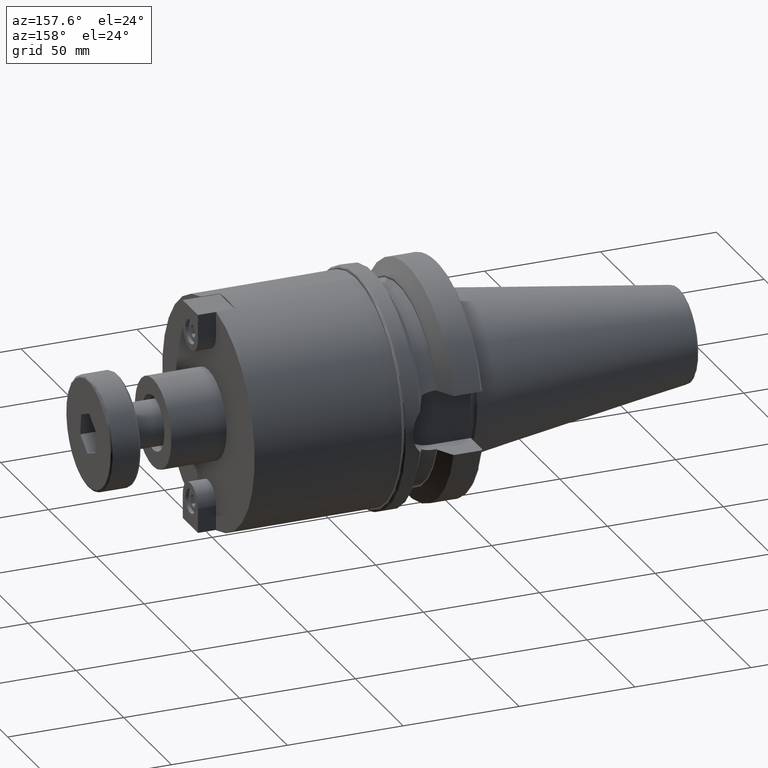
[diagram: clean part render]
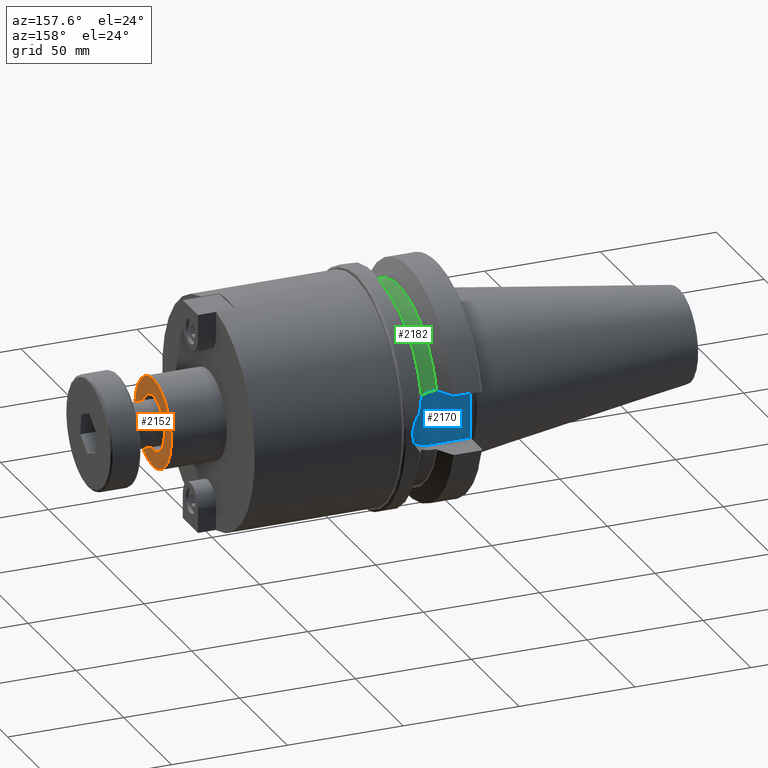
[diagram: same view with three faces highlighted in distinct colors, each labeled with its STEP entity id]
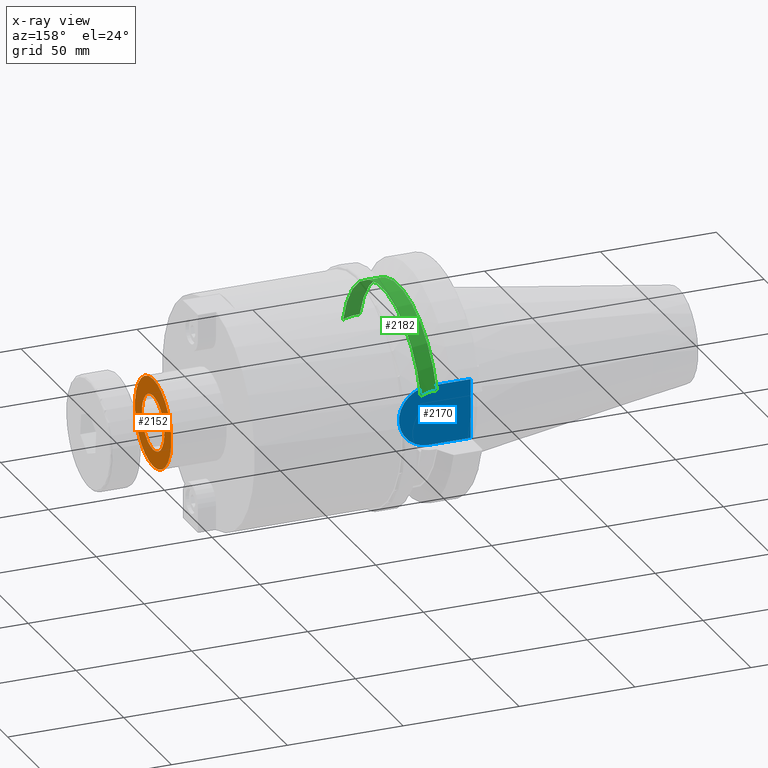
[diagram: x-ray of the same camera — body ghosted, the three highlighted faces saturated]
A machine part, auxiliary view with three faces highlighted in distinct colors.
The next image is the same camera in x-ray (body ghosted, the three faces saturated) — at least one of them is partly hidden behind the body in this view.
Their STEP definitions:

[orange] entity #2152 — the highlighted planar face has unit normal (1, 0, 0).
#527=FACE_BOUND('',#797,.T.);
#560=CIRCLE('',#2426,19.05);
#561=CIRCLE('',#2428,11.75);
#685=FACE_OUTER_BOUND('',#796,.T.);
#796=EDGE_LOOP('',(#1655));
#797=EDGE_LOOP('',(#1656));
#1171=VERTEX_POINT('',#3468);
#1172=VERTEX_POINT('',#3472);
#1354=EDGE_CURVE('',#1171,#1171,#560,.T.);
#1356=EDGE_CURVE('',#1172,#1172,#561,.T.);
#1655=ORIENTED_EDGE('',*,*,#1354,.T.);
#1656=ORIENTED_EDGE('',*,*,#1356,.F.);
#2088=PLANE('',#2427);
#2152=ADVANCED_FACE('',(#685,#527),#2088,.T.);
#2426=AXIS2_PLACEMENT_3D('',#3469,#2779,#2780);
#2427=AXIS2_PLACEMENT_3D('',#3471,#2782,#2783);
#2428=AXIS2_PLACEMENT_3D('',#3473,#2784,#2785);
#2779=DIRECTION('center_axis',(1.,0.,0.));
#2780=DIRECTION('ref_axis',(0.,0.,-1.));
#2782=DIRECTION('center_axis',(1.,0.,0.));
#2783=DIRECTION('ref_axis',(0.,0.,-1.));
#2784=DIRECTION('center_axis',(1.,0.,0.));
#2785=DIRECTION('ref_axis',(0.,0.,-1.));
#3468=CARTESIAN_POINT('',(125.47,-2.33295215237571E-15,19.05));
#3469=CARTESIAN_POINT('Origin',(125.47,0.,0.));
#3471=CARTESIAN_POINT('Origin',(125.47,0.,-11.75));
#3472=CARTESIAN_POINT('',(125.47,-1.43895998899814E-15,11.75));
#3473=CARTESIAN_POINT('Origin',(125.47,0.,0.));

[blue] entity #2170 — the highlighted planar face has unit normal (0, 1, 0).
#575=CIRCLE('',#2457,12.85);
#703=FACE_OUTER_BOUND('',#816,.T.);
#816=EDGE_LOOP('',(#1759,#1760,#1761,#1762));
#949=LINE('',#3681,#1070);
#954=LINE('',#3705,#1075);
#955=LINE('',#3707,#1076);
#1070=VECTOR('',#2871,10.);
#1075=VECTOR('',#2878,10.);
#1076=VECTOR('',#2881,10.);
#1209=VERTEX_POINT('',#3656);
#1210=VERTEX_POINT('',#3658);
#1215=VERTEX_POINT('',#3680);
#1220=VERTEX_POINT('',#3703);
#1407=EDGE_CURVE('',#1210,#1209,#575,.T.);
#1413=EDGE_CURVE('',#1215,#1210,#949,.T.);
#1420=EDGE_CURVE('',#1209,#1220,#954,.T.);
#1421=EDGE_CURVE('',#1215,#1220,#955,.T.);
#1759=ORIENTED_EDGE('',*,*,#1420,.T.);
#1760=ORIENTED_EDGE('',*,*,#1421,.F.);
#1761=ORIENTED_EDGE('',*,*,#1413,.T.);
#1762=ORIENTED_EDGE('',*,*,#1407,.T.);
#2097=PLANE('',#2460);
#2170=ADVANCED_FACE('',(#703),#2097,.T.);
#2457=AXIS2_PLACEMENT_3D('',#3659,#2864,#2865);
#2460=AXIS2_PLACEMENT_3D('',#3706,#2879,#2880);
#2864=DIRECTION('center_axis',(0.,1.,0.));
#2865=DIRECTION('ref_axis',(0.,0.,1.));
#2871=DIRECTION('',(1.,0.,-1.22338625303048E-16));
#2878=DIRECTION('',(-1.,0.,-1.22338625303048E-16));
#2879=DIRECTION('center_axis',(0.,1.,0.));
#2880=DIRECTION('ref_axis',(0.,0.,1.));
#2881=DIRECTION('',(0.,0.,-1.));
#3656=CARTESIAN_POINT('',(21.15,35.4,-12.85));
#3658=CARTESIAN_POINT('',(21.15,35.4,12.85));
#3659=CARTESIAN_POINT('Origin',(21.15,35.4,0.));
#3680=CARTESIAN_POINT('',(3.,35.4,12.85));
#3681=CARTESIAN_POINT('',(3.,35.4,12.85));
#3703=CARTESIAN_POINT('',(3.,35.4,-12.85));
#3705=CARTESIAN_POINT('',(21.15,35.4,-12.85));
#3706=CARTESIAN_POINT('Origin',(18.5,35.4,0.));
#3707=CARTESIAN_POINT('',(3.,35.4,0.));

[green] entity #2182 — the highlighted cylindrical surface (partial cylindrical patch) has radius 42.3 mm, axis along (1, 0, 0).
#468=B_SPLINE_CURVE_WITH_KNOTS('',3,(#3521,#3522,#3523,#3524,#3525,#3526),
 .UNSPECIFIED.,.F.,.F.,(4,2,4),(0.,0.487461795390416,0.551767586093955),
 .UNSPECIFIED.);
#475=B_SPLINE_CURVE_WITH_KNOTS('',3,(#3663,#3664,#3665,#3666,#3667,#3668),
 .UNSPECIFIED.,.F.,.F.,(4,2,4),(-0.551767586093955,-0.487461795390416,0.),
 .UNSPECIFIED.);
#498=CYLINDRICAL_SURFACE('',#2488,42.3);
#591=CIRCLE('',#2487,42.3);
#592=CIRCLE('',#2489,42.3);
#715=FACE_OUTER_BOUND('',#829,.T.);
#829=EDGE_LOOP('',(#1816,#1817,#1818,#1819,#1820,#1821));
#929=LINE('',#3534,#1050);
#948=LINE('',#3679,#1069);
#1050=VECTOR('',#2803,10.);
#1069=VECTOR('',#2870,10.);
#1181=VERTEX_POINT('',#3518);
#1182=VERTEX_POINT('',#3520);
#1185=VERTEX_POINT('',#3533);
#1211=VERTEX_POINT('',#3660);
#1212=VERTEX_POINT('',#3662);
#1214=VERTEX_POINT('',#3678);
#1366=EDGE_CURVE('',#1182,#1181,#468,.T.);
#1370=EDGE_CURVE('',#1185,#1182,#929,.T.);
#1409=EDGE_CURVE('',#1212,#1211,#475,.T.);
#1412=EDGE_CURVE('',#1211,#1214,#948,.T.);
#1440=EDGE_CURVE('',#1214,#1185,#591,.T.);
#1441=EDGE_CURVE('',#1212,#1181,#592,.T.);
#1816=ORIENTED_EDGE('',*,*,#1366,.T.);
#1817=ORIENTED_EDGE('',*,*,#1441,.F.);
#1818=ORIENTED_EDGE('',*,*,#1409,.T.);
#1819=ORIENTED_EDGE('',*,*,#1412,.T.);
#1820=ORIENTED_EDGE('',*,*,#1440,.T.);
#1821=ORIENTED_EDGE('',*,*,#1370,.T.);
#2182=ADVANCED_FACE('',(#715),#498,.T.);
#2487=AXIS2_PLACEMENT_3D('',#3745,#2937,#2938);
#2488=AXIS2_PLACEMENT_3D('',#3746,#2939,#2940);
#2489=AXIS2_PLACEMENT_3D('',#3747,#2941,#2942);
#2803=DIRECTION('',(1.,0.,0.));
#2870=DIRECTION('',(-1.,0.,0.));
#2937=DIRECTION('center_axis',(1.,0.,0.));
#2938=DIRECTION('ref_axis',(0.,0.,-1.));
#2939=DIRECTION('center_axis',(1.,0.,0.));
#2940=DIRECTION('ref_axis',(0.,1.,0.));
#2941=DIRECTION('center_axis',(1.,0.,0.));
#2942=DIRECTION('ref_axis',(0.,0.,-1.));
#3518=CARTESIAN_POINT('',(26.7,-40.6813224957105,11.5896505555603));
#3520=CARTESIAN_POINT('',(21.15,-40.3009615269909,12.85));
#3521=CARTESIAN_POINT('Ctrl Pts',(21.15,-40.3009615269909,12.85));
#3522=CARTESIAN_POINT('Ctrl Pts',(22.7748726513014,-40.3009615269909,12.85));
#3523=CARTESIAN_POINT('Ctrl Pts',(24.5004394739693,-40.4095209038274,12.523156759676));
#3524=CARTESIAN_POINT('Ctrl Pts',(26.2903327171265,-40.6269325004893,11.7792407740914));
#3525=CARTESIAN_POINT('Ctrl Pts',(26.4965759220475,-40.6535701129615,11.6870653677865));
#3526=CARTESIAN_POINT('Ctrl Pts',(26.7,-40.6813224957105,11.5896505555603));
#3533=CARTESIAN_POINT('',(19.7,-40.3009615269909,12.85));
#3534=CARTESIAN_POINT('',(23.2,-40.3009615269909,12.85));
#3660=CARTESIAN_POINT('',(21.15,40.3009615269909,12.85));
#3662=CARTESIAN_POINT('',(26.7,40.6813224957105,11.5896505555603));
#3663=CARTESIAN_POINT('Ctrl Pts',(26.7,40.6813224957105,11.5896505555603));
#3664=CARTESIAN_POINT('Ctrl Pts',(26.4965759220475,40.6535701129615,11.6870653677865));
#3665=CARTESIAN_POINT('Ctrl Pts',(26.2903327171265,40.6269325004893,11.7792407740914));
#3666=CARTESIAN_POINT('Ctrl Pts',(24.5004394739693,40.4095209038274,12.523156759676));
#3667=CARTESIAN_POINT('Ctrl Pts',(22.7748726513014,40.3009615269909,12.85));
#3668=CARTESIAN_POINT('Ctrl Pts',(21.15,40.3009615269909,12.85));
#3678=CARTESIAN_POINT('',(19.7,40.3009615269909,12.85));
#3679=CARTESIAN_POINT('',(23.2,40.3009615269909,12.85));
#3745=CARTESIAN_POINT('Origin',(19.7,0.,0.));
#3746=CARTESIAN_POINT('Origin',(23.2,0.,0.));
#3747=CARTESIAN_POINT('Origin',(26.7,0.,0.));